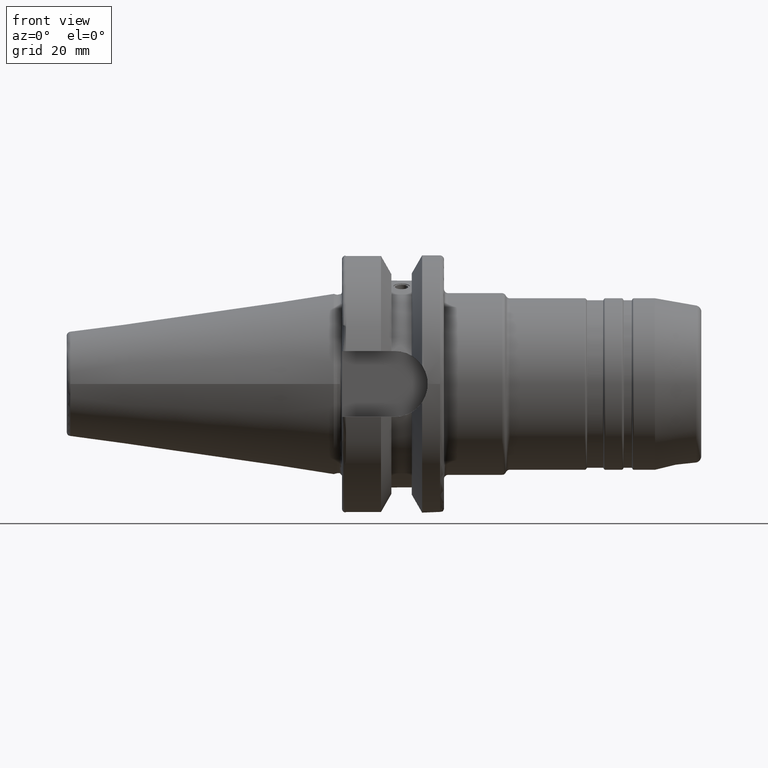
[diagram: clean part render]
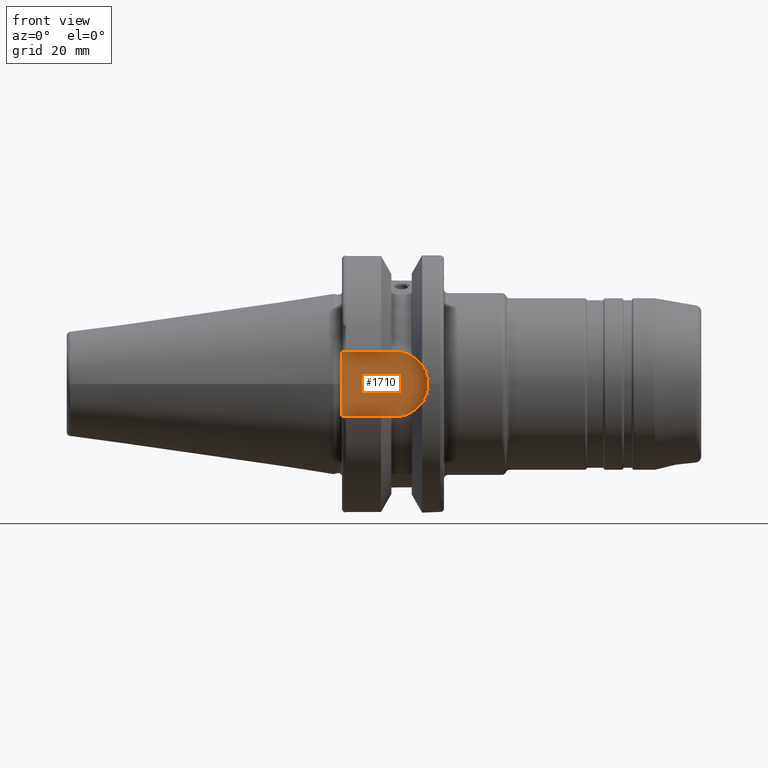
[diagram: same view with one face highlighted and labeled with its STEP entity id]
A machine part, front view. The second image highlights one B-rep face of the part: STEP entity #1710.
In plain terms, the highlighted planar face has unit normal (0, 1, 0).
Its self-contained STEP definition (entity closure, byte-faithful):
#47=PLANE('',#1943);
#191=FACE_OUTER_BOUND('',#291,.T.);
#291=EDGE_LOOP('',(#1426,#1427,#1428,#1429));
#372=LINE('',#3167,#442);
#374=LINE('',#3172,#444);
#378=LINE('',#3194,#448);
#442=VECTOR('',#2426,10.);
#444=VECTOR('',#2430,10.);
#448=VECTOR('',#2436,10.);
#575=CIRCLE('',#1940,8.05);
#749=VERTEX_POINT('',#3138);
#750=VERTEX_POINT('',#3140);
#756=VERTEX_POINT('',#3165);
#758=VERTEX_POINT('',#3171);
#985=EDGE_CURVE('',#749,#750,#575,.T.);
#993=EDGE_CURVE('',#756,#749,#372,.T.);
#995=EDGE_CURVE('',#750,#758,#374,.T.);
#1001=EDGE_CURVE('',#758,#756,#378,.T.);
#1426=ORIENTED_EDGE('',*,*,#995,.F.);
#1427=ORIENTED_EDGE('',*,*,#985,.F.);
#1428=ORIENTED_EDGE('',*,*,#993,.F.);
#1429=ORIENTED_EDGE('',*,*,#1001,.F.);
#1710=ADVANCED_FACE('',(#191),#47,.F.);
#1940=AXIS2_PLACEMENT_3D('',#3141,#2417,#2418);
#1943=AXIS2_PLACEMENT_3D('',#3193,#2434,#2435);
#2417=DIRECTION('center_axis',(0.,1.,0.));
#2418=DIRECTION('ref_axis',(0.,0.,1.));
#2426=DIRECTION('',(1.,0.,8.57315076930623E-17));
#2430=DIRECTION('',(-1.,0.,-8.57315076930623E-17));
#2434=DIRECTION('center_axis',(0.,1.,0.));
#2435=DIRECTION('ref_axis',(0.,0.,1.));
#2436=DIRECTION('',(0.,0.,1.));
#3138=CARTESIAN_POINT('',(14.95,-22.6,8.05));
#3140=CARTESIAN_POINT('',(14.95,-22.6,-8.05));
#3141=CARTESIAN_POINT('Origin',(14.95,-22.6,0.));
#3165=CARTESIAN_POINT('',(1.99999999999999,-22.6,8.05));
#3167=CARTESIAN_POINT('',(1.99999999999999,-22.6,8.05));
#3171=CARTESIAN_POINT('',(1.99999999999999,-22.6,-8.05));
#3172=CARTESIAN_POINT('',(14.95,-22.6,-8.05));
#3193=CARTESIAN_POINT('Origin',(12.5,-22.6,0.));
#3194=CARTESIAN_POINT('',(1.99999999999999,-22.6,0.));